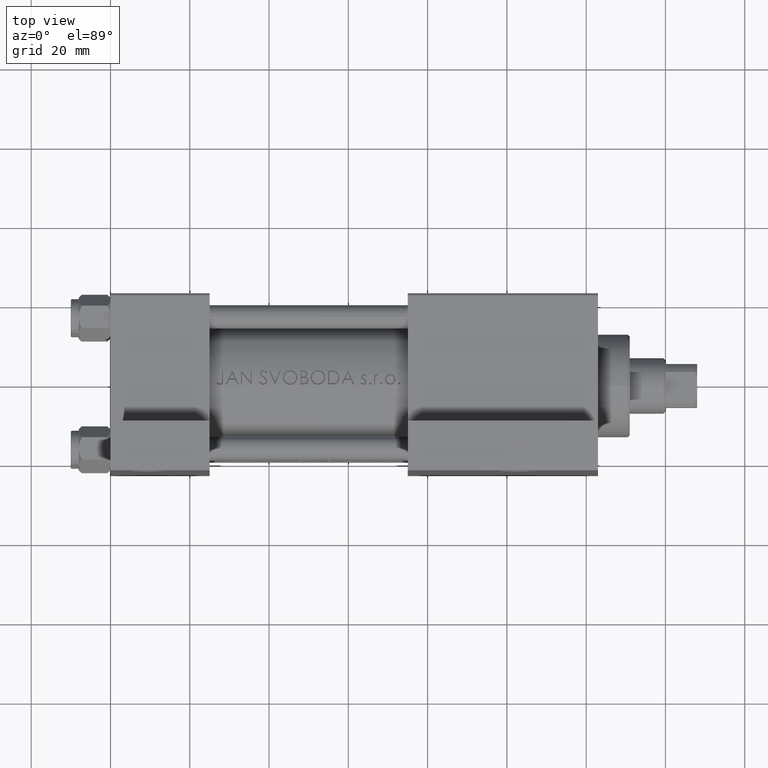
[diagram: clean part render]
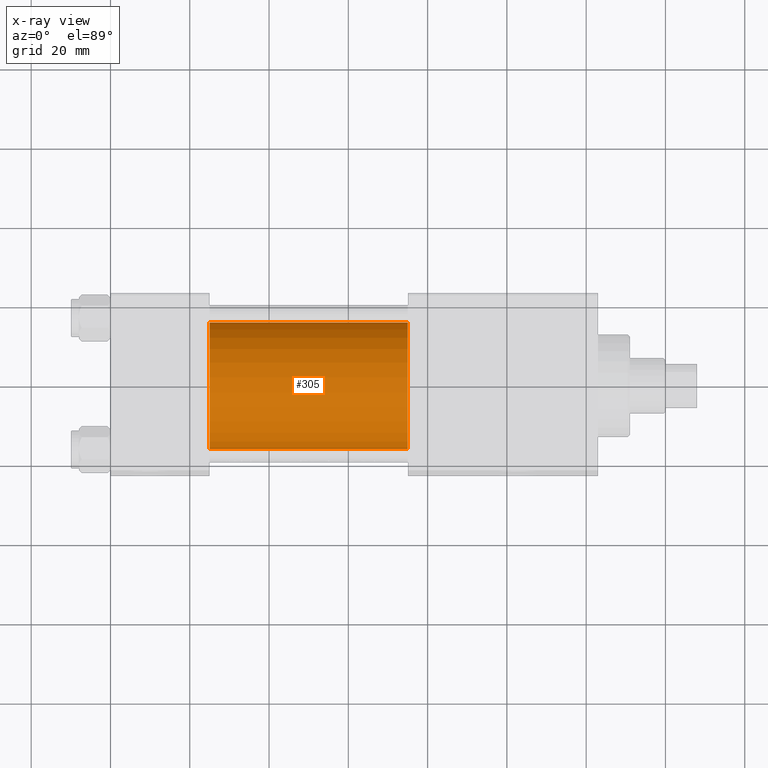
[diagram: x-ray — body ghosted, one internal face saturated and labeled with its STEP entity id]
A machine part, top view, then the same camera in x-ray: the body is ghosted and one INTERNAL B-rep face — a face not visible from any outside direction — is saturated and labeled: STEP entity #305.
In plain terms, the highlighted cylindrical surface (partial cylindrical patch) has radius 16 mm, axis along (-1, -0, 0).
Its self-contained STEP definition (entity closure, byte-faithful):
#305 = ADVANCED_FACE ( 'NONE', ( #24798 ), #2420, .F. ) ;
#941 = CIRCLE ( 'NONE', #5545, 16.00000000000000000 ) ;
#1790 = VECTOR ( 'NONE', #23157, 1000.000000000000000 ) ;
#2420 = CYLINDRICAL_SURFACE ( 'NONE', #26496, 16.00000000000000000 ) ;
#3770 = LINE ( 'NONE', #22059, #24089 ) ;
#3804 = DIRECTION ( 'NONE',  ( 0.000000000000000000, 0.000000000000000000, -1.000000000000000000 ) ) ;
#5421 = CARTESIAN_POINT ( 'NONE',  ( 75.00000000000001421, 0.000000000000000000, -0.4999999999999970024 ) ) ;
#5545 = AXIS2_PLACEMENT_3D ( 'NONE', #5421, #34775, #8781 ) ;
#5882 = CARTESIAN_POINT ( 'NONE',  ( 75.00000000000001421, 1.959434878635765131E-15, -16.49999999999999645 ) ) ;
#6816 = EDGE_CURVE ( 'NONE', #20392, #41145, #32093, .T. ) ;
#7208 = CARTESIAN_POINT ( 'NONE',  ( 25.00000000000000000, 1.959434878635765131E-15, -16.49999999999999645 ) ) ;
#8781 = DIRECTION ( 'NONE',  ( 0.000000000000000000, 0.000000000000000000, -1.000000000000000000 ) ) ;
#12752 = ORIENTED_EDGE ( 'NONE', *, *, #41976, .T. ) ;
#17330 = CARTESIAN_POINT ( 'NONE',  ( 75.00000000000001421, 0.000000000000000000, -0.4999999999999970024 ) ) ;
#20392 = VERTEX_POINT ( 'NONE', #29528 ) ;
#22059 = CARTESIAN_POINT ( 'NONE',  ( 75.00000000000001421, 1.959434878635765131E-15, -16.49999999999999645 ) ) ;
#23157 = DIRECTION ( 'NONE',  ( -1.000000000000000000, -0.000000000000000000, -0.000000000000000000 ) ) ;
#24089 = VECTOR ( 'NONE', #36494, 1000.000000000000000 ) ;
#24322 = DIRECTION ( 'NONE',  ( 0.000000000000000000, 0.000000000000000000, 1.000000000000000000 ) ) ;
#24798 = FACE_OUTER_BOUND ( 'NONE', #30994, .T. ) ;
#24912 = ORIENTED_EDGE ( 'NONE', *, *, #6816, .F. ) ;
#26496 = AXIS2_PLACEMENT_3D ( 'NONE', #17330, #39221, #24322 ) ;
#29528 = CARTESIAN_POINT ( 'NONE',  ( 25.00000000000000000, 0.000000000000000000, 15.50000000000000355 ) ) ;
#29777 = DIRECTION ( 'NONE',  ( 1.000000000000000000, 0.000000000000000000, 0.000000000000000000 ) ) ;
#30994 = EDGE_LOOP ( 'NONE', ( #31276, #12752, #24912, #39805 ) ) ;
#31276 = ORIENTED_EDGE ( 'NONE', *, *, #34650, .T. ) ;
#32093 = CIRCLE ( 'NONE', #32848, 16.00000000000000000 ) ;
#32848 = AXIS2_PLACEMENT_3D ( 'NONE', #33630, #29777, #3804 ) ;
#33630 = CARTESIAN_POINT ( 'NONE',  ( 25.00000000000000000, 0.000000000000000000, -0.4999999999999970024 ) ) ;
#33720 = VERTEX_POINT ( 'NONE', #5882 ) ;
#34650 = EDGE_CURVE ( 'NONE', #40573, #33720, #941, .T. ) ;
#34775 = DIRECTION ( 'NONE',  ( 1.000000000000000000, 0.000000000000000000, 0.000000000000000000 ) ) ;
#36494 = DIRECTION ( 'NONE',  ( -1.000000000000000000, -0.000000000000000000, -0.000000000000000000 ) ) ;
#37578 = CARTESIAN_POINT ( 'NONE',  ( 75.00000000000001421, 0.000000000000000000, 15.50000000000000355 ) ) ;
#37812 = LINE ( 'NONE', #37578, #1790 ) ;
#39092 = EDGE_CURVE ( 'NONE', #40573, #20392, #37812, .T. ) ;
#39221 = DIRECTION ( 'NONE',  ( -1.000000000000000000, -0.000000000000000000, -0.000000000000000000 ) ) ;
#39805 = ORIENTED_EDGE ( 'NONE', *, *, #39092, .F. ) ;
#40098 = CARTESIAN_POINT ( 'NONE',  ( 75.00000000000001421, 0.000000000000000000, 15.50000000000000355 ) ) ;
#40573 = VERTEX_POINT ( 'NONE', #40098 ) ;
#41145 = VERTEX_POINT ( 'NONE', #7208 ) ;
#41976 = EDGE_CURVE ( 'NONE', #33720, #41145, #3770, .T. ) ;